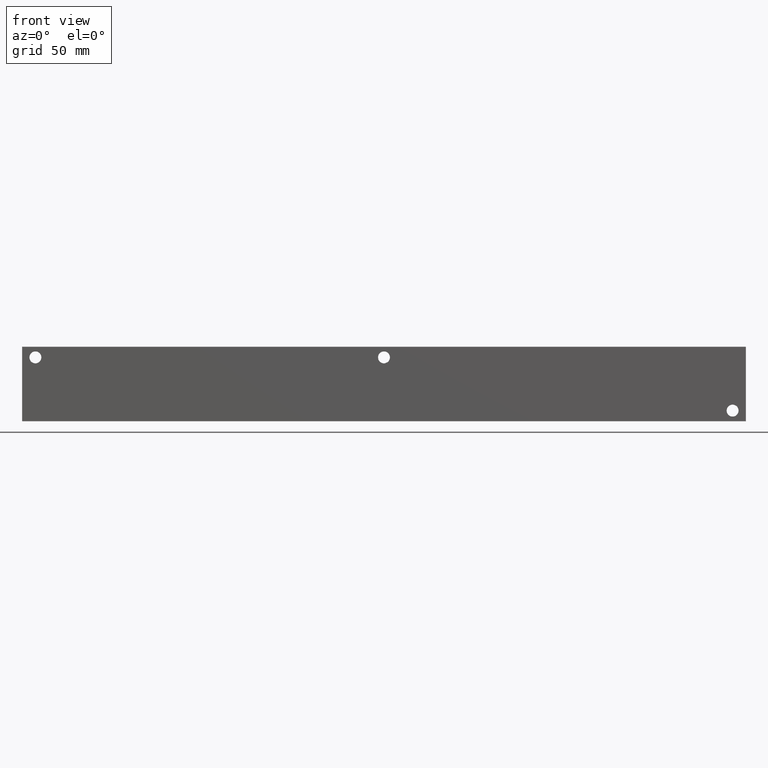
[diagram: clean part render]
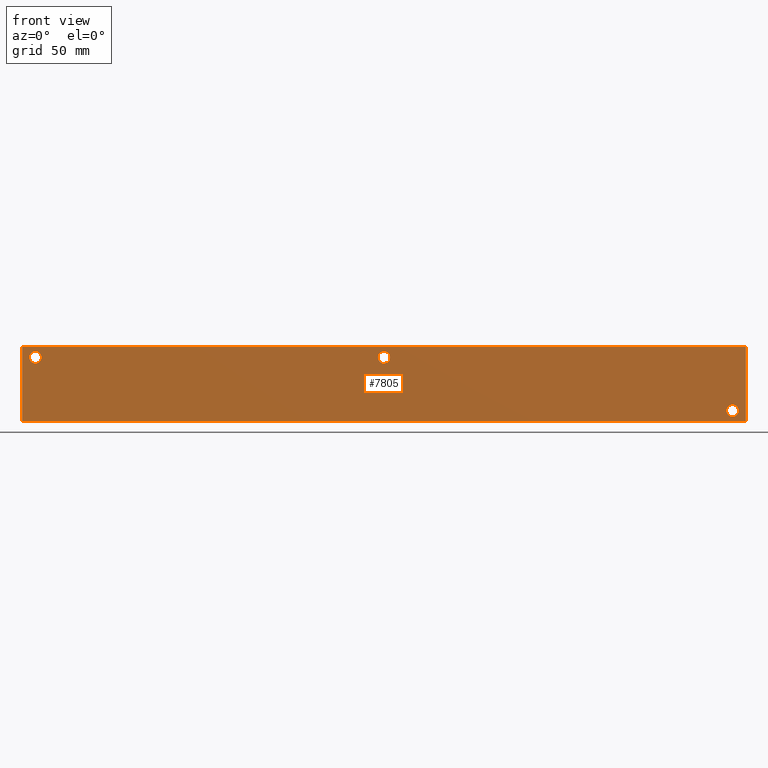
[diagram: same view with one face highlighted and labeled with its STEP entity id]
A machine part, front view. The second image highlights one B-rep face of the part: STEP entity #7805.
In plain terms, the highlighted planar face has unit normal (0, -1, 0).
Its self-contained STEP definition (entity closure, byte-faithful):
#164=CIRCLE('',#8136,3.5687);
#165=CIRCLE('',#8137,3.5687);
#167=CIRCLE('',#8145,3.5687);
#168=CIRCLE('',#8146,3.5687);
#170=CIRCLE('',#8154,3.5687);
#171=CIRCLE('',#8155,3.5687);
#277=FACE_BOUND('',#1375,.T.);
#278=FACE_BOUND('',#1376,.T.);
#279=FACE_BOUND('',#1377,.T.);
#513=PLANE('',#8246);
#913=FACE_OUTER_BOUND('',#1374,.T.);
#1374=EDGE_LOOP('',(#6950,#6951,#6952,#6953));
#1375=EDGE_LOOP('',(#6954,#6955));
#1376=EDGE_LOOP('',(#6956,#6957));
#1377=EDGE_LOOP('',(#6958,#6959));
#1645=LINE('',#12149,#2348);
#2087=LINE('',#13499,#2790);
#2092=LINE('',#13508,#2795);
#2093=LINE('',#13510,#2796);
#2348=VECTOR('',#8625,10.);
#2790=VECTOR('',#9791,10.);
#2795=VECTOR('',#9800,10.);
#2796=VECTOR('',#9803,10.);
#3339=VERTEX_POINT('',#12147);
#3340=VERTEX_POINT('',#12148);
#3691=VERTEX_POINT('',#13286);
#3692=VERTEX_POINT('',#13287);
#3696=VERTEX_POINT('',#13302);
#3697=VERTEX_POINT('',#13303);
#3701=VERTEX_POINT('',#13318);
#3702=VERTEX_POINT('',#13319);
#3758=VERTEX_POINT('',#13497);
#3760=VERTEX_POINT('',#13506);
#4229=EDGE_CURVE('',#3339,#3340,#1645,.T.);
#4728=EDGE_CURVE('',#3691,#3692,#164,.T.);
#4729=EDGE_CURVE('',#3692,#3691,#165,.T.);
#4737=EDGE_CURVE('',#3696,#3697,#167,.T.);
#4738=EDGE_CURVE('',#3697,#3696,#168,.T.);
#4746=EDGE_CURVE('',#3701,#3702,#170,.T.);
#4747=EDGE_CURVE('',#3702,#3701,#171,.T.);
#4829=EDGE_CURVE('',#3758,#3339,#2087,.T.);
#4834=EDGE_CURVE('',#3760,#3340,#2092,.T.);
#4835=EDGE_CURVE('',#3758,#3760,#2093,.T.);
#6950=ORIENTED_EDGE('',*,*,#4835,.T.);
#6951=ORIENTED_EDGE('',*,*,#4834,.T.);
#6952=ORIENTED_EDGE('',*,*,#4229,.F.);
#6953=ORIENTED_EDGE('',*,*,#4829,.F.);
#6954=ORIENTED_EDGE('',*,*,#4728,.T.);
#6955=ORIENTED_EDGE('',*,*,#4729,.T.);
#6956=ORIENTED_EDGE('',*,*,#4737,.T.);
#6957=ORIENTED_EDGE('',*,*,#4738,.T.);
#6958=ORIENTED_EDGE('',*,*,#4746,.T.);
#6959=ORIENTED_EDGE('',*,*,#4747,.T.);
#7805=ADVANCED_FACE('',(#913,#277,#278,#279),#513,.T.);
#8136=AXIS2_PLACEMENT_3D('',#13288,#9538,#9539);
#8137=AXIS2_PLACEMENT_3D('',#13289,#9540,#9541);
#8145=AXIS2_PLACEMENT_3D('',#13304,#9558,#9559);
#8146=AXIS2_PLACEMENT_3D('',#13305,#9560,#9561);
#8154=AXIS2_PLACEMENT_3D('',#13320,#9578,#9579);
#8155=AXIS2_PLACEMENT_3D('',#13321,#9580,#9581);
#8246=AXIS2_PLACEMENT_3D('',#13509,#9801,#9802);
#8625=DIRECTION('',(1.,0.,0.));
#9538=DIRECTION('center_axis',(0.,1.,0.));
#9539=DIRECTION('ref_axis',(1.,0.,0.));
#9540=DIRECTION('center_axis',(0.,1.,0.));
#9541=DIRECTION('ref_axis',(1.,0.,0.));
#9558=DIRECTION('center_axis',(0.,1.,0.));
#9559=DIRECTION('ref_axis',(1.,0.,0.));
#9560=DIRECTION('center_axis',(0.,1.,0.));
#9561=DIRECTION('ref_axis',(1.,0.,0.));
#9578=DIRECTION('center_axis',(0.,1.,0.));
#9579=DIRECTION('ref_axis',(1.,0.,0.));
#9580=DIRECTION('center_axis',(0.,1.,0.));
#9581=DIRECTION('ref_axis',(1.,0.,0.));
#9791=DIRECTION('',(0.,0.,1.));
#9800=DIRECTION('',(0.,0.,1.));
#9801=DIRECTION('center_axis',(0.,-1.,0.));
#9802=DIRECTION('ref_axis',(1.,0.,0.));
#9803=DIRECTION('',(1.,0.,0.));
#12147=CARTESIAN_POINT('',(0.,0.,44.45));
#12148=CARTESIAN_POINT('',(431.8,0.,44.45));
#12149=CARTESIAN_POINT('',(0.,0.,44.45));
#13286=CARTESIAN_POINT('',(219.4687,0.,38.1));
#13287=CARTESIAN_POINT('',(212.3313,0.,38.1));
#13288=CARTESIAN_POINT('Origin',(215.9,0.,38.1));
#13289=CARTESIAN_POINT('Origin',(215.9,0.,38.1));
#13302=CARTESIAN_POINT('',(11.4935,0.,38.1));
#13303=CARTESIAN_POINT('',(4.3561,0.,38.1));
#13304=CARTESIAN_POINT('Origin',(7.9248,0.,38.1));
#13305=CARTESIAN_POINT('Origin',(7.9248,0.,38.1));
#13318=CARTESIAN_POINT('',(427.4439,0.,6.35));
#13319=CARTESIAN_POINT('',(420.3065,0.,6.35));
#13320=CARTESIAN_POINT('Origin',(423.8752,0.,6.35));
#13321=CARTESIAN_POINT('Origin',(423.8752,0.,6.35));
#13497=CARTESIAN_POINT('',(0.,0.,0.));
#13499=CARTESIAN_POINT('',(0.,0.,0.));
#13506=CARTESIAN_POINT('',(431.8,0.,0.));
#13508=CARTESIAN_POINT('',(431.8,0.,0.));
#13509=CARTESIAN_POINT('Origin',(0.,0.,0.));
#13510=CARTESIAN_POINT('',(0.,0.,0.));